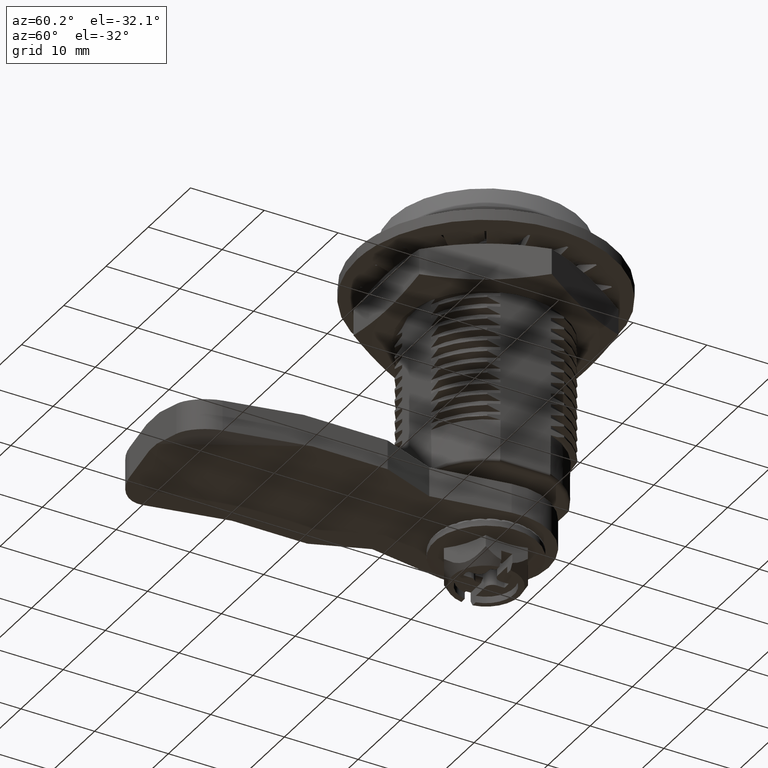
[diagram: clean part render]
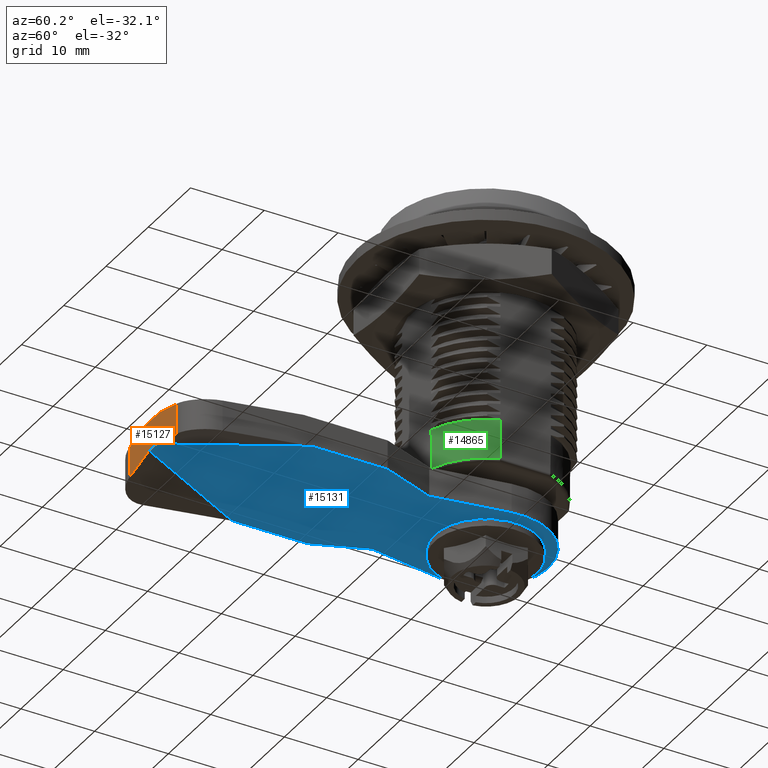
[diagram: same view with three faces highlighted in distinct colors, each labeled with its STEP entity id]
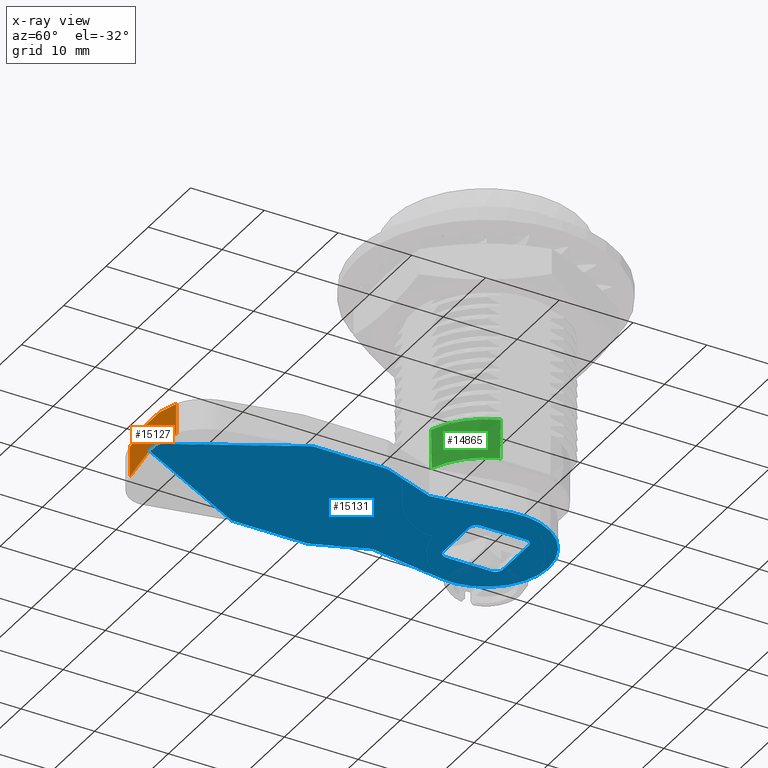
[diagram: x-ray of the same camera — body ghosted, the three highlighted faces saturated]
A machine part, auxiliary view with three faces highlighted in distinct colors.
The next image is the same camera in x-ray (body ghosted, the three faces saturated) — at least one of them is partly hidden behind the body in this view.
Their STEP definitions:

[orange] entity #15127 — the highlighted planar face has unit normal (0, 1, 0).
#285=PLANE('',#16066);
#1782=FACE_OUTER_BOUND('',#2645,.T.);
#2645=EDGE_LOOP('',(#13491,#13492,#13493,#13494,#13495,#13496,#13497,#13498));
#4421=LINE('',#84532,#5456);
#4432=LINE('',#84563,#5467);
#4433=LINE('',#84565,#5468);
#4434=LINE('',#84567,#5469);
#4435=LINE('',#84568,#5470);
#4436=LINE('',#84570,#5471);
#4437=LINE('',#84572,#5472);
#4438=LINE('',#84573,#5473);
#5456=VECTOR('',#18619,3.00000000000001);
#5467=VECTOR('',#18642,1.76109432956);
#5468=VECTOR('',#18643,4.75687144678395);
#5469=VECTOR('',#18644,4.1522147698662);
#5470=VECTOR('',#18645,4.11899124547064);
#5471=VECTOR('',#18646,4.11899124547066);
#5472=VECTOR('',#18647,4.15221476932327);
#5473=VECTOR('',#18648,4.75687144552946);
#6992=VERTEX_POINT('',#84529);
#6993=VERTEX_POINT('',#84531);
#7006=VERTEX_POINT('',#84561);
#7007=VERTEX_POINT('',#84562);
#7008=VERTEX_POINT('',#84564);
#7009=VERTEX_POINT('',#84566);
#7010=VERTEX_POINT('',#84569);
#7011=VERTEX_POINT('',#84571);
#9198=EDGE_CURVE('',#6992,#6993,#4421,.T.);
#9213=EDGE_CURVE('',#7006,#7007,#4432,.T.);
#9214=EDGE_CURVE('',#7007,#7008,#4433,.T.);
#9215=EDGE_CURVE('',#7008,#7009,#4434,.T.);
#9216=EDGE_CURVE('',#7009,#6993,#4435,.T.);
#9217=EDGE_CURVE('',#7010,#6992,#4436,.T.);
#9218=EDGE_CURVE('',#7010,#7011,#4437,.T.);
#9219=EDGE_CURVE('',#7011,#7006,#4438,.T.);
#13491=ORIENTED_EDGE('',*,*,#9213,.T.);
#13492=ORIENTED_EDGE('',*,*,#9214,.T.);
#13493=ORIENTED_EDGE('',*,*,#9215,.T.);
#13494=ORIENTED_EDGE('',*,*,#9216,.T.);
#13495=ORIENTED_EDGE('',*,*,#9198,.F.);
#13496=ORIENTED_EDGE('',*,*,#9217,.F.);
#13497=ORIENTED_EDGE('',*,*,#9218,.T.);
#13498=ORIENTED_EDGE('',*,*,#9219,.T.);
#15127=ADVANCED_FACE('',(#1782),#285,.F.);
#16066=AXIS2_PLACEMENT_3D('',#84560,#18640,#18641);
#18619=DIRECTION('',(1.,-2.08166817117217E-14,0.));
#18640=DIRECTION('center_axis',(2.08166817117217E-14,1.,0.));
#18641=DIRECTION('ref_axis',(-1.,2.8421709430404E-14,0.));
#18642=DIRECTION('',(1.,-2.08166817117217E-14,0.));
#18643=DIRECTION('',(0.97111155659738,-2.02153201802623E-14,-0.238625951319243));
#18644=DIRECTION('',(0.,0.,1.));
#18645=DIRECTION('',(-0.97111155659738,2.02188525539347E-14,0.238625951319243));
#18646=DIRECTION('',(0.971111556597381,-2.02153201802623E-14,0.238625951319238));
#18647=DIRECTION('',(0.,0.,-1.));
#18648=DIRECTION('',(0.971111556597381,-2.02153201802623E-14,0.238625951319238));
#84529=CARTESIAN_POINT('',(167.5,159.85,-48.5));
#84531=CARTESIAN_POINT('',(170.5,159.85,-48.5));
#84532=CARTESIAN_POINT('',(163.5,159.85,-48.5));
#84560=CARTESIAN_POINT('Origin',(163.5,159.85,-55.4));
#84561=CARTESIAN_POINT('',(168.11945283522,159.85,-52.5));
#84562=CARTESIAN_POINT('',(169.88054716478,159.85,-52.5));
#84563=CARTESIAN_POINT('',(163.5,159.85,-52.5));
#84564=CARTESIAN_POINT('',(174.5,159.85,-53.6351129742922));
#84565=CARTESIAN_POINT('',(169.537797227046,159.85,-52.4157779254086));
#84566=CARTESIAN_POINT('',(174.5,159.85,-49.482898204426));
#84567=CARTESIAN_POINT('',(174.5,159.85,-55.4));
#84568=CARTESIAN_POINT('',(163.898596412501,159.85,-46.8778730667889));
#84569=CARTESIAN_POINT('',(163.5,159.85,-49.4828982044261));
#84570=CARTESIAN_POINT('',(167.5,159.85,-48.5));
#84571=CARTESIAN_POINT('',(163.500000001158,159.85,-53.6351129737494));
#84572=CARTESIAN_POINT('',(163.5,159.85,-55.4));
#84573=CARTESIAN_POINT('',(168.462202772954,159.85,-52.4157779254086));

[blue] entity #15131 — the highlighted planar face has unit normal (0, 0, 1).
#289=PLANE('',#16070);
#757=CIRCLE('',#16071,0.5);
#758=CIRCLE('',#16072,8.5);
#759=CIRCLE('',#16073,0.5);
#760=CIRCLE('',#16074,1.);
#761=CIRCLE('',#16075,1.);
#762=CIRCLE('',#16076,1.);
#763=CIRCLE('',#16077,1.);
#1124=FACE_BOUND('',#2650,.T.);
#1786=FACE_OUTER_BOUND('',#2649,.T.);
#2649=EDGE_LOOP('',(#13513,#13514,#13515,#13516,#13517,#13518,#13519,#13520,
#13521,#13522,#13523,#13524));
#2650=EDGE_LOOP('',(#13525,#13526,#13527,#13528,#13529,#13530,#13531,#13532));
#4428=LINE('',#84554,#5463);
#4432=LINE('',#84563,#5467);
#4443=LINE('',#84583,#5478);
#4445=LINE('',#84588,#5480);
#4447=LINE('',#84593,#5482);
#4450=LINE('',#84599,#5485);
#4451=LINE('',#84602,#5486);
#4452=LINE('',#84604,#5487);
#4453=LINE('',#84605,#5488);
#4454=LINE('',#84608,#5489);
#4455=LINE('',#84612,#5490);
#4456=LINE('',#84616,#5491);
#4457=LINE('',#84620,#5492);
#5463=VECTOR('',#18636,10.12772716383);
#5467=VECTOR('',#18642,1.76109432956);
#5478=VECTOR('',#18655,10.12772716383);
#5480=VECTOR('',#18659,7.63284210876752);
#5482=VECTOR('',#18663,7.63284210876752);
#5485=VECTOR('',#18670,10.3302952523131);
#5486=VECTOR('',#18673,10.3302952523131);
#5487=VECTOR('',#18676,18.316337274843);
#5488=VECTOR('',#18677,18.3163372748429);
#5489=VECTOR('',#18678,6.10000000000003);
#5490=VECTOR('',#18681,6.10000000000003);
#5491=VECTOR('',#18684,6.10000000000003);
#5492=VECTOR('',#18687,6.10000000000003);
#7002=VERTEX_POINT('',#84551);
#7003=VERTEX_POINT('',#84553);
#7006=VERTEX_POINT('',#84561);
#7007=VERTEX_POINT('',#84562);
#7012=VERTEX_POINT('',#84575);
#7015=VERTEX_POINT('',#84581);
#7016=VERTEX_POINT('',#84585);
#7017=VERTEX_POINT('',#84587);
#7018=VERTEX_POINT('',#84591);
#7019=VERTEX_POINT('',#84592);
#7020=VERTEX_POINT('',#84598);
#7021=VERTEX_POINT('',#84600);
#7022=VERTEX_POINT('',#84606);
#7023=VERTEX_POINT('',#84607);
#7024=VERTEX_POINT('',#84609);
#7025=VERTEX_POINT('',#84611);
#7026=VERTEX_POINT('',#84613);
#7027=VERTEX_POINT('',#84615);
#7028=VERTEX_POINT('',#84617);
#7029=VERTEX_POINT('',#84619);
#9209=EDGE_CURVE('',#7002,#7003,#4428,.T.);
#9213=EDGE_CURVE('',#7006,#7007,#4432,.T.);
#9224=EDGE_CURVE('',#7012,#7015,#4443,.T.);
#9226=EDGE_CURVE('',#7016,#7017,#4445,.T.);
#9228=EDGE_CURVE('',#7018,#7019,#4447,.T.);
#9231=EDGE_CURVE('',#7002,#7019,#757,.T.);
#9232=EDGE_CURVE('',#7020,#7018,#4450,.T.);
#9233=EDGE_CURVE('',#7021,#7020,#758,.T.);
#9234=EDGE_CURVE('',#7017,#7021,#4451,.T.);
#9235=EDGE_CURVE('',#7012,#7016,#759,.T.);
#9236=EDGE_CURVE('',#7015,#7007,#4452,.T.);
#9237=EDGE_CURVE('',#7006,#7003,#4453,.T.);
#9238=EDGE_CURVE('',#7022,#7023,#4454,.T.);
#9239=EDGE_CURVE('',#7023,#7024,#760,.T.);
#9240=EDGE_CURVE('',#7024,#7025,#4455,.T.);
#9241=EDGE_CURVE('',#7025,#7026,#761,.T.);
#9242=EDGE_CURVE('',#7026,#7027,#4456,.T.);
#9243=EDGE_CURVE('',#7027,#7028,#762,.T.);
#9244=EDGE_CURVE('',#7028,#7029,#4457,.T.);
#9245=EDGE_CURVE('',#7029,#7022,#763,.T.);
#13513=ORIENTED_EDGE('',*,*,#9209,.F.);
#13514=ORIENTED_EDGE('',*,*,#9231,.T.);
#13515=ORIENTED_EDGE('',*,*,#9228,.F.);
#13516=ORIENTED_EDGE('',*,*,#9232,.F.);
#13517=ORIENTED_EDGE('',*,*,#9233,.F.);
#13518=ORIENTED_EDGE('',*,*,#9234,.F.);
#13519=ORIENTED_EDGE('',*,*,#9226,.F.);
#13520=ORIENTED_EDGE('',*,*,#9235,.F.);
#13521=ORIENTED_EDGE('',*,*,#9224,.T.);
#13522=ORIENTED_EDGE('',*,*,#9236,.T.);
#13523=ORIENTED_EDGE('',*,*,#9213,.F.);
#13524=ORIENTED_EDGE('',*,*,#9237,.T.);
#13525=ORIENTED_EDGE('',*,*,#9238,.T.);
#13526=ORIENTED_EDGE('',*,*,#9239,.T.);
#13527=ORIENTED_EDGE('',*,*,#9240,.T.);
#13528=ORIENTED_EDGE('',*,*,#9241,.T.);
#13529=ORIENTED_EDGE('',*,*,#9242,.T.);
#13530=ORIENTED_EDGE('',*,*,#9243,.T.);
#13531=ORIENTED_EDGE('',*,*,#9244,.T.);
#13532=ORIENTED_EDGE('',*,*,#9245,.T.);
#15131=ADVANCED_FACE('',(#1786,#1124),#289,.F.);
#16070=AXIS2_PLACEMENT_3D('',#84596,#18666,#18667);
#16071=AXIS2_PLACEMENT_3D('',#84597,#18668,#18669);
#16072=AXIS2_PLACEMENT_3D('',#84601,#18671,#18672);
#16073=AXIS2_PLACEMENT_3D('',#84603,#18674,#18675);
#16074=AXIS2_PLACEMENT_3D('',#84610,#18679,#18680);
#16075=AXIS2_PLACEMENT_3D('',#84614,#18682,#18683);
#16076=AXIS2_PLACEMENT_3D('',#84618,#18685,#18686);
#16077=AXIS2_PLACEMENT_3D('',#84621,#18688,#18689);
#18636=DIRECTION('',(0.,-1.,0.));
#18642=DIRECTION('',(1.,-2.08166817117217E-14,0.));
#18655=DIRECTION('',(1.24012826544541E-15,-1.,0.));
#18659=DIRECTION('',(-0.355993760545314,0.934488331897625,0.));
#18663=DIRECTION('',(-0.355993760545323,-0.934488331897621,0.));
#18666=DIRECTION('center_axis',(0.,0.,1.));
#18667=DIRECTION('ref_axis',(0.,-1.,0.));
#18668=DIRECTION('center_axis',(0.,0.,-1.));
#18669=DIRECTION('ref_axis',(0.,-1.,0.));
#18670=DIRECTION('',(0.158944525727806,-0.987287515236146,0.));
#18671=DIRECTION('center_axis',(0.,0.,1.));
#18672=DIRECTION('ref_axis',(0.,1.,0.));
#18673=DIRECTION('',(0.15894452572781,0.987287515236145,0.));
#18674=DIRECTION('center_axis',(0.,0.,1.));
#18675=DIRECTION('ref_axis',(0.,-1.,0.));
#18676=DIRECTION('',(-0.470588235294113,-0.882352941176473,0.));
#18677=DIRECTION('',(-0.470588235294113,0.882352941176473,0.));
#18678=DIRECTION('',(1.,3.72538975988461E-14,0.));
#18679=DIRECTION('center_axis',(0.,0.,1.));
#18680=DIRECTION('ref_axis',(0.,1.,0.));
#18681=DIRECTION('',(0.,1.,0.));
#18682=DIRECTION('center_axis',(0.,0.,1.));
#18683=DIRECTION('ref_axis',(0.,1.,0.));
#18684=DIRECTION('',(-1.,0.,0.));
#18685=DIRECTION('center_axis',(0.,0.,1.));
#18686=DIRECTION('ref_axis',(0.,1.,0.));
#18687=DIRECTION('',(0.,-1.,0.));
#18688=DIRECTION('center_axis',(0.,0.,1.));
#18689=DIRECTION('ref_axis',(0.,1.,0.));
#84551=CARTESIAN_POINT('',(159.5,186.139201229868,-52.5));
#84553=CARTESIAN_POINT('',(159.5,176.011474066038,-52.5));
#84554=CARTESIAN_POINT('',(159.5,186.231213612335,-52.5));
#84561=CARTESIAN_POINT('',(168.11945283522,159.85,-52.5));
#84562=CARTESIAN_POINT('',(169.88054716478,159.85,-52.5));
#84563=CARTESIAN_POINT('',(163.5,159.85,-52.5));
#84575=CARTESIAN_POINT('',(178.5,186.139201229868,-52.5));
#84581=CARTESIAN_POINT('',(178.5,176.011474066038,-52.5));
#84583=CARTESIAN_POINT('',(178.5,163.85,-52.5));
#84585=CARTESIAN_POINT('',(178.467244165949,186.317198110141,-52.5));
#84587=CARTESIAN_POINT('',(175.75,193.450000000001,-52.5));
#84588=CARTESIAN_POINT('',(173.338217853738,199.780960046348,-52.5));
#84591=CARTESIAN_POINT('',(162.25,193.450000000001,-52.5));
#84592=CARTESIAN_POINT('',(159.532755834051,186.317198110141,-52.5));
#84593=CARTESIAN_POINT('',(160.635809575691,189.212728777418,-52.5));
#84596=CARTESIAN_POINT('Origin',(174.5,163.85,-52.5));
#84597=CARTESIAN_POINT('Origin',(160.,186.139201229868,-52.5));
#84598=CARTESIAN_POINT('',(160.608056120493,203.648971531313,-52.5));
#84599=CARTESIAN_POINT('',(162.234649604504,193.545349328694,-52.5));
#84600=CARTESIAN_POINT('',(177.391943879507,203.648971531313,-52.5));
#84601=CARTESIAN_POINT('Origin',(169.,205.,-52.5));
#84602=CARTESIAN_POINT('',(174.962790989907,188.560233435299,-52.5));
#84603=CARTESIAN_POINT('Origin',(178.,186.139201229868,-52.5));
#84604=CARTESIAN_POINT('',(172.564439834171,164.882298755108,-52.5));
#84605=CARTESIAN_POINT('',(167.871546324998,160.314824706666,-52.5));
#84606=CARTESIAN_POINT('',(165.95,200.95,-52.5));
#84607=CARTESIAN_POINT('',(172.05,200.95,-52.5));
#84608=CARTESIAN_POINT('',(153.116140255467,200.949999999999,-52.5));
#84609=CARTESIAN_POINT('',(173.05,201.95,-52.5));
#84610=CARTESIAN_POINT('Origin',(172.05,201.95,-52.5));
#84611=CARTESIAN_POINT('',(173.05,208.05,-52.5));
#84612=CARTESIAN_POINT('',(173.05,192.077350269189,-52.5));
#84613=CARTESIAN_POINT('',(172.05,209.05,-52.5));
#84614=CARTESIAN_POINT('Origin',(172.05,208.05,-52.5));
#84615=CARTESIAN_POINT('',(165.95,209.05,-52.5));
#84616=CARTESIAN_POINT('',(153.116140255467,209.05,-52.5));
#84617=CARTESIAN_POINT('',(164.95,208.05,-52.5));
#84618=CARTESIAN_POINT('Origin',(165.95,208.05,-52.5));
#84619=CARTESIAN_POINT('',(164.95,201.95,-52.5));
#84620=CARTESIAN_POINT('',(164.95,192.077350269189,-52.5));
#84621=CARTESIAN_POINT('Origin',(165.95,201.95,-52.5));

[green] entity #14865 — the highlighted conical surface has half-angle 1 deg.
#37=(
BOUNDED_CURVE()
B_SPLINE_CURVE(2,(#40910,#40911,#40912),.UNSPECIFIED.,.F.,.F.)
B_SPLINE_CURVE_WITH_KNOTS((3,3),(0.0997311987867264,0.630685829169671),
 .UNSPECIFIED.)
CURVE()
GEOMETRIC_REPRESENTATION_ITEM()
RATIONAL_B_SPLINE_CURVE((0.999999998112517,0.99999999388196,0.999999998103437))
REPRESENTATION_ITEM('')
);
#38=(
BOUNDED_CURVE()
B_SPLINE_CURVE(2,(#40913,#40914,#40915),.UNSPECIFIED.,.F.,.F.)
B_SPLINE_CURVE_WITH_KNOTS((3,3),(0.100301628763544,0.631256258967652),
 .UNSPECIFIED.)
CURVE()
GEOMETRIC_REPRESENTATION_ITEM()
RATIONAL_B_SPLINE_CURVE((0.999999998660051,0.999999995677519,0.999999998666467))
REPRESENTATION_ITEM('')
);
#112=CONICAL_SURFACE('',#15900,10.,0.0174532925199433);
#731=CIRCLE('',#15887,9.90733583943669);
#739=CIRCLE('',#15901,10.);
#1520=FACE_OUTER_BOUND('',#2381,.T.);
#2381=EDGE_LOOP('',(#12415,#12416,#12417,#12418));
#6293=VERTEX_POINT('',#36334);
#6416=VERTEX_POINT('',#37240);
#6963=VERTEX_POINT('',#40700);
#6964=VERTEX_POINT('',#40723);
#8916=EDGE_CURVE('',#6964,#6963,#731,.T.);
#8936=EDGE_CURVE('',#6416,#6964,#37,.T.);
#8937=EDGE_CURVE('',#6963,#6293,#38,.T.);
#8938=EDGE_CURVE('',#6293,#6416,#739,.T.);
#12415=ORIENTED_EDGE('',*,*,#8936,.T.);
#12416=ORIENTED_EDGE('',*,*,#8916,.T.);
#12417=ORIENTED_EDGE('',*,*,#8937,.T.);
#12418=ORIENTED_EDGE('',*,*,#8938,.T.);
#14865=ADVANCED_FACE('',(#1520),#112,.T.);
#15887=AXIS2_PLACEMENT_3D('',#40724,#18256,#18257);
#15900=AXIS2_PLACEMENT_3D('',#40909,#18287,#18288);
#15901=AXIS2_PLACEMENT_3D('',#40916,#18289,#18290);
#18256=DIRECTION('center_axis',(0.,0.,1.));
#18257=DIRECTION('ref_axis',(-1.,0.,0.));
#18287=DIRECTION('center_axis',(0.,0.,1.));
#18288=DIRECTION('ref_axis',(-1.,0.,0.));
#18289=DIRECTION('center_axis',(0.,0.,-1.));
#18290=DIRECTION('ref_axis',(-1.,0.,0.));
#36334=CARTESIAN_POINT('',(178.4,201.588255578154,-30.7));
#37240=CARTESIAN_POINT('',(172.411744421846,195.6,-30.7));
#40700=CARTESIAN_POINT('',(178.307335839437,201.604590892496,-36.0087262032187));
#40723=CARTESIAN_POINT('',(172.395409107504,195.692664160563,-36.0087262032187));
#40724=CARTESIAN_POINT('Origin',(169.,205.,-36.0087262032187));
#40909=CARTESIAN_POINT('Origin',(169.,205.,-30.7));
#40910=CARTESIAN_POINT('Ctrl Pts',(172.411744421849,195.6,-30.6999999999998));
#40911=CARTESIAN_POINT('Ctrl Pts',(172.403576766845,195.646443252348,-33.3607321449936));
#40912=CARTESIAN_POINT('Ctrl Pts',(172.395409107502,195.692664160567,-36.0087262034356));
#40913=CARTESIAN_POINT('Ctrl Pts',(178.307335839437,201.604590892495,-36.0087262032208));
#40914=CARTESIAN_POINT('Ctrl Pts',(178.353556729907,201.596423236283,-33.3607331616269));
#40915=CARTESIAN_POINT('Ctrl Pts',(178.399999999997,201.588255578155,-30.7000000001513));
#40916=CARTESIAN_POINT('Origin',(169.,205.,-30.7));